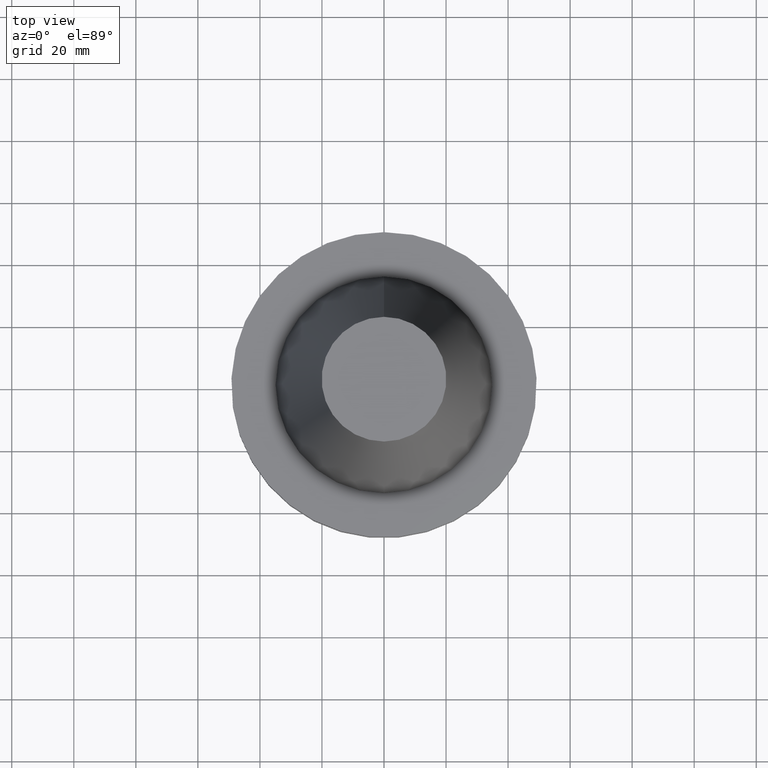
[diagram: clean part render]
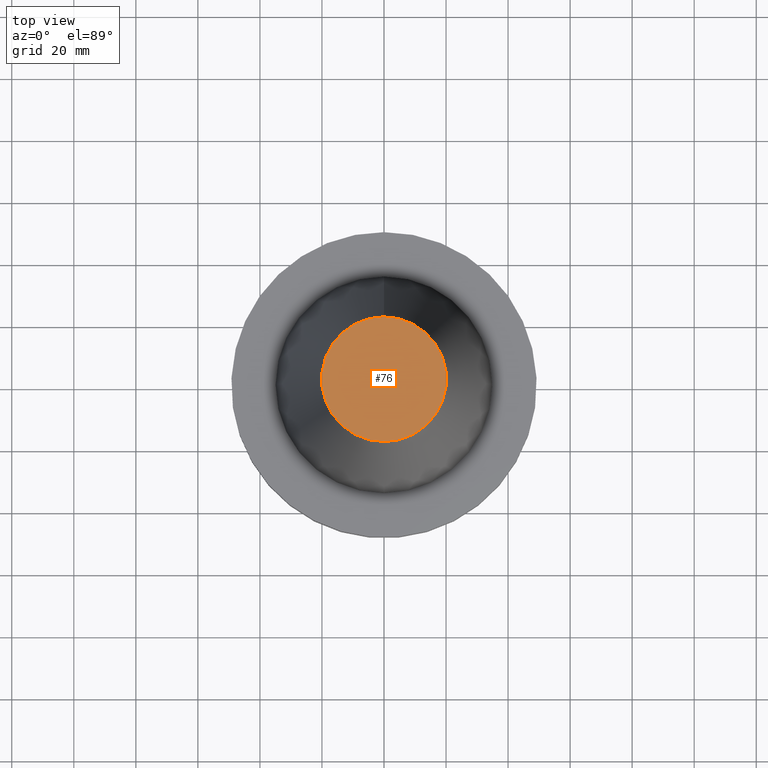
[diagram: same view with one face highlighted and labeled with its STEP entity id]
A machine part, top view. The second image highlights one B-rep face of the part: STEP entity #76.
In plain terms, the highlighted planar face has unit normal (-0, -0, 1).
Its self-contained STEP definition (entity closure, byte-faithful):
#59=EDGE_CURVE('Unnamed[1]',#158,#158,#159,.T.);
#76=ADVANCED_FACE('Unnamed[1]',(#184),#185,.T.);
#158=VERTEX_POINT('',#292);
#159=CIRCLE('',#293,20.1083333297217);
#184=FACE_OUTER_BOUND('',#325,.T.);
#185=PLANE('',#326);
#292=CARTESIAN_POINT('',(-6.22120573966855E-015,20.1083333297217,101.6));
#293=AXIS2_PLACEMENT_3D('',#448,#449,#450);
#325=EDGE_LOOP('',(#476));
#326=AXIS2_PLACEMENT_3D('',#477,#478,#479);
#448=CARTESIAN_POINT('',(-6.22120573966855E-015,-1.24424114793371E-014,101.6));
#449=DIRECTION('',(6.12323399573676E-017,1.22464679914735E-016,-1.0));
#450=DIRECTION('',(-1.23259516440783E-032,1.0,1.22464679914735E-016));
#476=ORIENTED_EDGE('',*,*,#59,.F.);
#477=CARTESIAN_POINT('',(-6.22120573966855E-015,10.0541666648608,101.6));
#478=DIRECTION('',(-6.12323399573677E-017,-1.22464679914735E-016,1.0));
#479=DIRECTION('',(1.23259516440783E-032,-1.0,-1.22464679914735E-016));